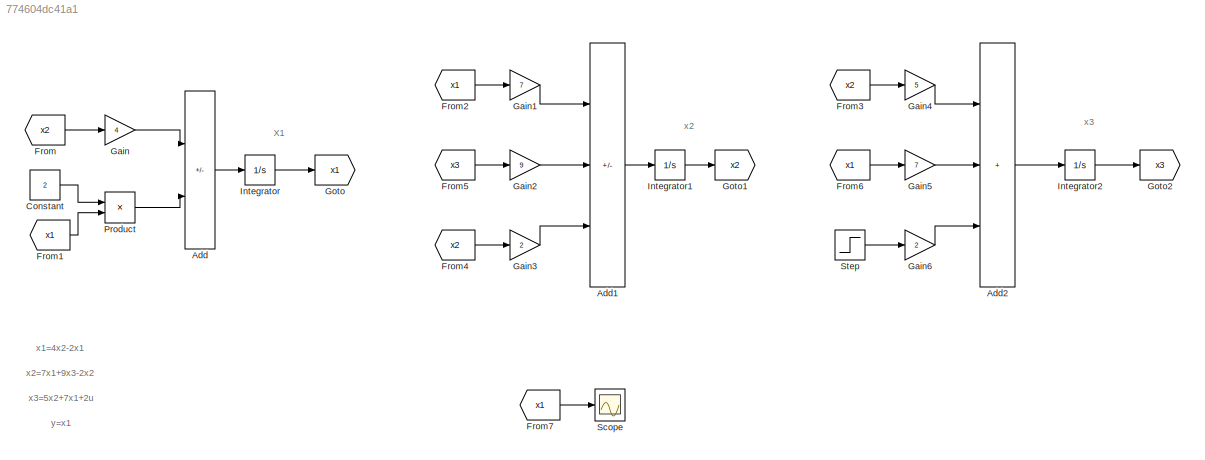
MODEL slx_774604dc41a1
KIND model
CONFIG AbsTol = auto
CONFIG EnableMultiTasking = off
CONFIG FixedStep = 0.001
CONFIG MaxStep = auto
CONFIG MinStep = auto
CONFIG RelTol = 1e-3
CONFIG SampleTimeConstraint = Unconstrained
CONFIG SolverName = ode4
CONFIG StartTime = 0.0
CONFIG StopTime = 10.0
BLOCK [Sum] Add
  IconShape = rectangular
  Inputs = +-
  Ports = [2, 1]
BLOCK [Sum] Add1
  IconShape = rectangular
  Inputs = ++-
  Ports = [3, 1]
BLOCK [Sum] Add2
  IconShape = rectangular
  Inputs = +++
  Ports = [3, 1]
BLOCK [Constant] Constant
  Value = 2
BLOCK [From] From
  GotoTag = x2
BLOCK [From] From1
  GotoTag = x1
BLOCK [From] From2
  GotoTag = x1
BLOCK [From] From3
  GotoTag = x2
BLOCK [From] From4
  GotoTag = x2
BLOCK [From] From5
  GotoTag = x3
BLOCK [From] From6
  GotoTag = x1
BLOCK [From] From7
  GotoTag = x1
BLOCK [Gain] Gain
  Gain = 4
BLOCK [Gain] Gain1
  Gain = 7
BLOCK [Gain] Gain2
  Gain = 9
BLOCK [Gain] Gain3
  Gain = 2
BLOCK [Gain] Gain4
  Gain = 5
BLOCK [Gain] Gain5
  Gain = 7
BLOCK [Gain] Gain6
  Gain = 2
BLOCK [Goto] Goto
  GotoTag = x1
BLOCK [Goto] Goto1
  GotoTag = x2
BLOCK [Goto] Goto2
  GotoTag = x3
BLOCK [Integrator] Integrator
  Ports = [1, 1]
BLOCK [Integrator] Integrator1
  Ports = [1, 1]
BLOCK [Integrator] Integrator2
  Ports = [1, 1]
BLOCK [Product] Product
  Ports = [2, 1]
BLOCK [Scope] Scope
  Floating = off
  NumInputPorts = 1
  Ports = [1]
  ScopeSpecificationString = Simulink.scopes.TimeScopeBlockCfg('CurrentConfiguration', extmgr.ConfigurationSet(extmgr.Configuration('Core','General UI',true),extmgr.Configuration('Core','Source UI',true),extmgr.Configuration('Sources','WiredSimulink',true),extmgr.Configuration('Visuals','Time Domain',true,'SerializedDisplays',{struct('MinYLimReal','-22286922742813784846722633039872.00000','MaxYLimReal','2005823046853241086564...<+1580ch>
BLOCK [Step] Step
  SampleTime = 0
ANNOTATION (root): X1
ANNOTATION (root): x1=4x2-2x1
ANNOTATION (root): x2
ANNOTATION (root): x2=7x1+9x3-2x2
ANNOTATION (root): x3
ANNOTATION (root): x3=5x2+7x1+2u
ANNOTATION (root): y=x1
LINE Add1:1 -> Integrator1:1
LINE Add2:1 -> Integrator2:1
LINE Add:1 -> Integrator:1
LINE Constant:1 -> Product:1
LINE From1:1 -> Product:2
LINE From2:1 -> Gain1:1
LINE From3:1 -> Gain4:1
LINE From4:1 -> Gain3:1
LINE From5:1 -> Gain2:1
LINE From6:1 -> Gain5:1
LINE From7:1 -> Scope:1
LINE From:1 -> Gain:1
LINE Gain1:1 -> Add1:1
LINE Gain2:1 -> Add1:2
LINE Gain3:1 -> Add1:3
LINE Gain4:1 -> Add2:1
LINE Gain5:1 -> Add2:2
LINE Gain6:1 -> Add2:3
LINE Gain:1 -> Add:1
LINE Integrator1:1 -> Goto1:1
LINE Integrator2:1 -> Goto2:1
LINE Integrator:1 -> Goto:1
LINE Product:1 -> Add:2
LINE Step:1 -> Gain6:1
